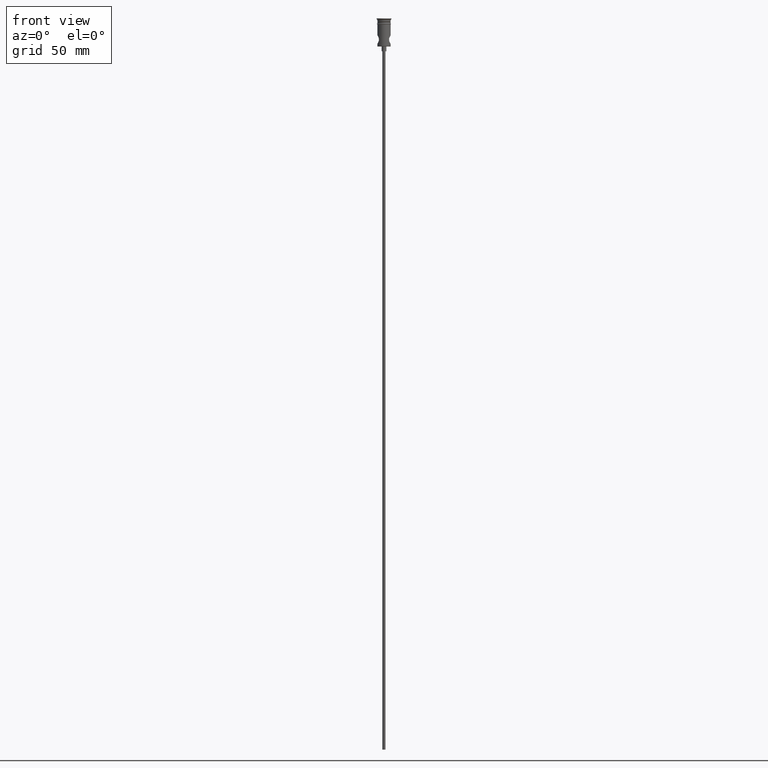
[diagram: clean part render]
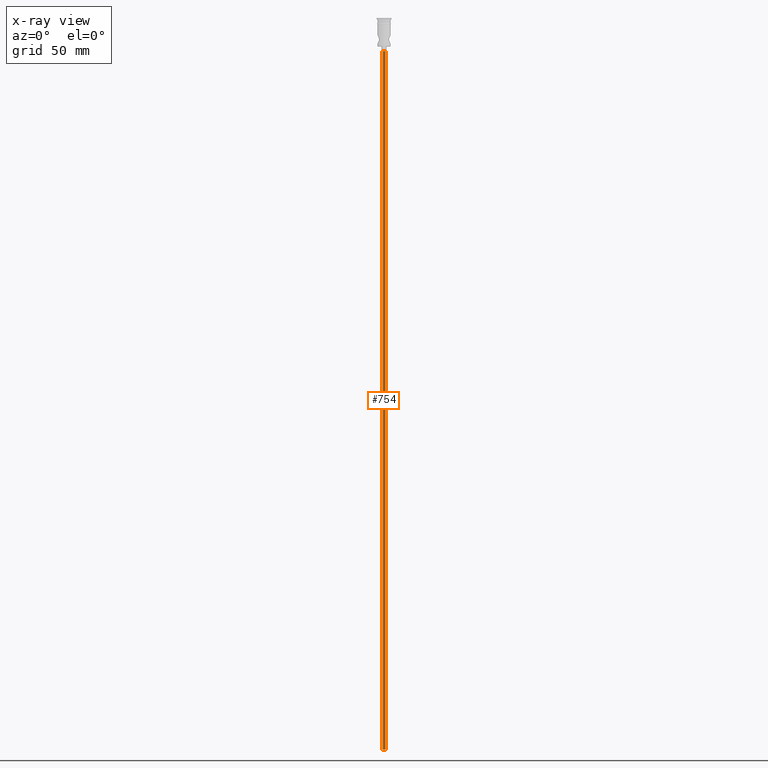
[diagram: x-ray — body ghosted, one internal face saturated and labeled with its STEP entity id]
A machine part, front view, then the same camera in x-ray: the body is ghosted and one INTERNAL B-rep face — a face not visible from any outside direction — is saturated and labeled: STEP entity #754.
In plain terms, the highlighted cylindrical surface (edge-blend (fillet) strip) has radius 1 mm, axis along (-0, -0, 1).
Its self-contained STEP definition (entity closure, byte-faithful):
#21 = CARTESIAN_POINT ( 'NONE',  ( -0.9999999999999997780, 1.224646799147352961E-16, -20.99999999999999645 ) ) ;
#29 = VERTEX_POINT ( 'NONE', #82 ) ;
#82 = CARTESIAN_POINT ( 'NONE',  ( -0.9999999999999997780, 1.224646799147352961E-16, -468.0000000000000000 ) ) ;
#109 = CARTESIAN_POINT ( 'NONE',  ( 0.000000000000000000, 0.000000000000000000, -468.0000000000000000 ) ) ;
#130 = EDGE_LOOP ( 'NONE', ( #1132, #547, #737, #668 ) ) ;
#131 = CARTESIAN_POINT ( 'NONE',  ( 0.000000000000000000, 0.000000000000000000, -20.99999999999999645 ) ) ;
#271 = CARTESIAN_POINT ( 'NONE',  ( 0.9999999999999997780, 0.000000000000000000, -468.0000000000000000 ) ) ;
#355 = DIRECTION ( 'NONE',  ( -1.000000000000000000, 0.000000000000000000, 0.000000000000000000 ) ) ;
#363 = LINE ( 'NONE', #571, #1387 ) ;
#370 = CARTESIAN_POINT ( 'NONE',  ( 0.9999999999999997780, 0.000000000000000000, -468.0000000000000000 ) ) ;
#385 = AXIS2_PLACEMENT_3D ( 'NONE', #530, #1312, #767 ) ;
#389 = FACE_OUTER_BOUND ( 'NONE', #130, .T. ) ;
#453 = EDGE_CURVE ( 'NONE', #29, #885, #363, .T. ) ;
#456 = VERTEX_POINT ( 'NONE', #1108 ) ;
#457 = DIRECTION ( 'NONE',  ( -0.000000000000000000, -0.000000000000000000, 1.000000000000000000 ) ) ;
#530 = CARTESIAN_POINT ( 'NONE',  ( 0.000000000000000000, 0.000000000000000000, -468.0000000000000000 ) ) ;
#547 = ORIENTED_EDGE ( 'NONE', *, *, #453, .T. ) ;
#570 = CIRCLE ( 'NONE', #1203, 0.9999999999999997780 ) ;
#571 = CARTESIAN_POINT ( 'NONE',  ( -0.9999999999999997780, 1.224646799147352961E-16, -468.0000000000000000 ) ) ;
#605 = DIRECTION ( 'NONE',  ( -0.000000000000000000, -0.000000000000000000, 1.000000000000000000 ) ) ;
#635 = VERTEX_POINT ( 'NONE', #271 ) ;
#668 = ORIENTED_EDGE ( 'NONE', *, *, #1140, .F. ) ;
#737 = ORIENTED_EDGE ( 'NONE', *, *, #895, .T. ) ;
#754 = ADVANCED_FACE ( 'NONE', ( #389 ), #843, .T. ) ;
#767 = DIRECTION ( 'NONE',  ( 1.000000000000000000, 0.000000000000000000, 0.000000000000000000 ) ) ;
#808 = DIRECTION ( 'NONE',  ( -1.000000000000000000, 0.000000000000000000, 0.000000000000000000 ) ) ;
#843 = CYLINDRICAL_SURFACE ( 'NONE', #385, 0.9999999999999997780 ) ;
#885 = VERTEX_POINT ( 'NONE', #21 ) ;
#895 = EDGE_CURVE ( 'NONE', #885, #456, #570, .T. ) ;
#916 = DIRECTION ( 'NONE',  ( 0.000000000000000000, 0.000000000000000000, -1.000000000000000000 ) ) ;
#931 = CIRCLE ( 'NONE', #1383, 0.9999999999999997780 ) ;
#1108 = CARTESIAN_POINT ( 'NONE',  ( 0.9999999999999997780, 0.000000000000000000, -20.99999999999999645 ) ) ;
#1132 = ORIENTED_EDGE ( 'NONE', *, *, #1349, .F. ) ;
#1139 = LINE ( 'NONE', #370, #1319 ) ;
#1140 = EDGE_CURVE ( 'NONE', #635, #456, #1139, .T. ) ;
#1203 = AXIS2_PLACEMENT_3D ( 'NONE', #131, #916, #355 ) ;
#1312 = DIRECTION ( 'NONE',  ( -0.000000000000000000, -0.000000000000000000, 1.000000000000000000 ) ) ;
#1319 = VECTOR ( 'NONE', #605, 1000.000000000000000 ) ;
#1323 = DIRECTION ( 'NONE',  ( 0.000000000000000000, 0.000000000000000000, -1.000000000000000000 ) ) ;
#1349 = EDGE_CURVE ( 'NONE', #29, #635, #931, .T. ) ;
#1383 = AXIS2_PLACEMENT_3D ( 'NONE', #109, #1323, #808 ) ;
#1387 = VECTOR ( 'NONE', #457, 1000.000000000000000 ) ;